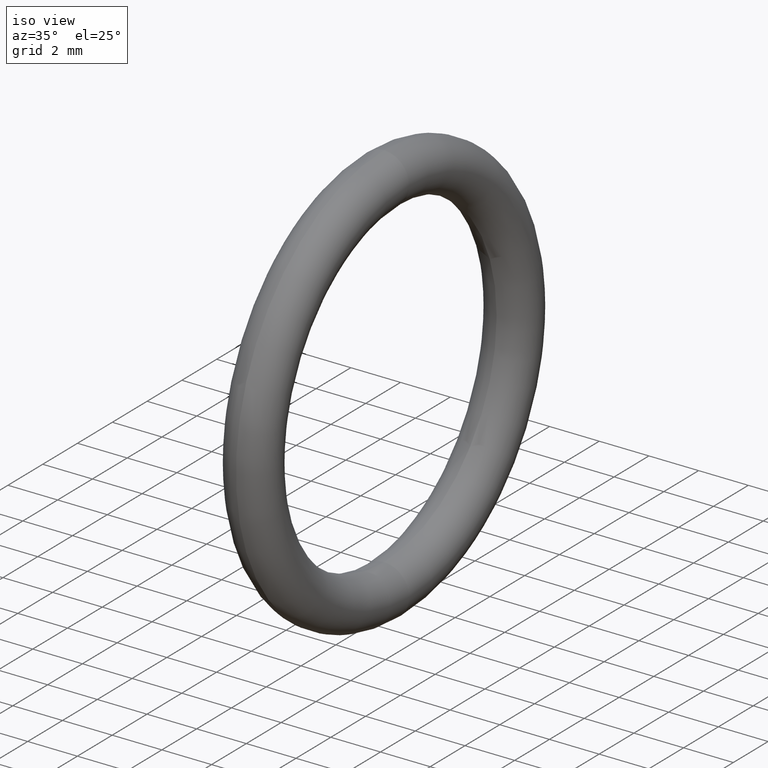
[diagram: clean part render]
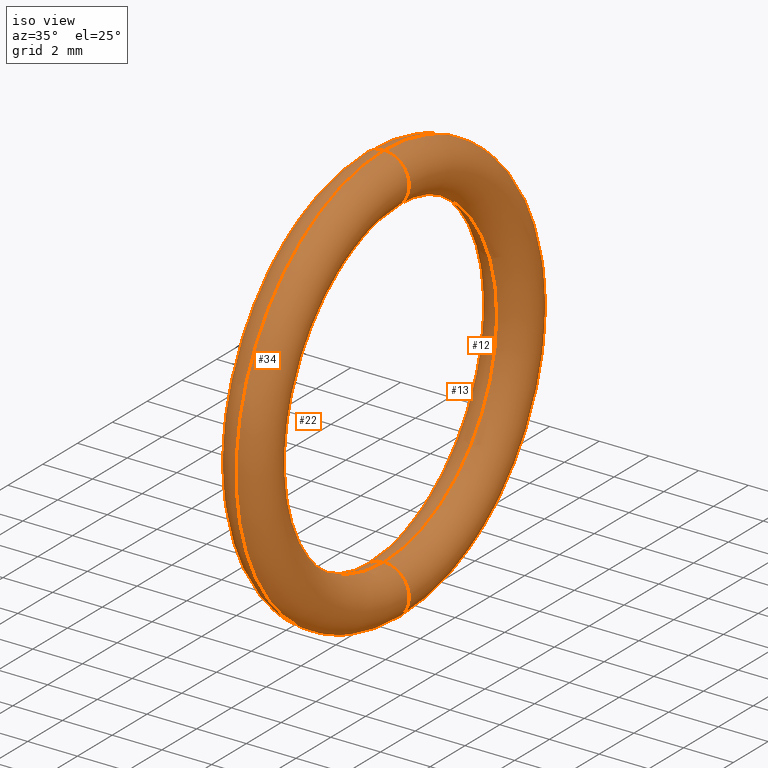
[diagram: same view with one multi-face feature highlighted, each face labeled with its STEP entity id]
A machine part, iso view. The highlighted faces form ONE feature: a constant-radius fillet chain: 4 tangent blend faces with common blend radius 1.016 mm. The faces share edges in the B-rep.
Their STEP definitions:
[1] entity #12 (Torus):
#8 = EDGE_CURVE ( 'NONE', #41, #43, #49, .T. ) ;
#11 = EDGE_CURVE ( 'NONE', #41, #30, #69, .T. ) ;
#12 = ADVANCED_FACE ( 'NONE', ( #70 ), #66, .T. ) ;
#19 = EDGE_CURVE ( 'NONE', #30, #33, #89, .T. ) ;
#24 = ORIENTED_EDGE ( 'NONE', *, *, #19, .T. ) ;
#25 = EDGE_LOOP ( 'NONE', ( #26, #27, #38, #24 ) ) ;
#26 = ORIENTED_EDGE ( 'NONE', *, *, #35, .F. ) ;
#27 = ORIENTED_EDGE ( 'NONE', *, *, #8, .F. ) ;
#30 = VERTEX_POINT ( 'NONE', #79 ) ;
#33 = VERTEX_POINT ( 'NONE', #61 ) ;
#35 = EDGE_CURVE ( 'NONE', #43, #33, #58, .T. ) ;
#38 = ORIENTED_EDGE ( 'NONE', *, *, #11, .T. ) ;
#41 = VERTEX_POINT ( 'NONE', #120 ) ;
#43 = VERTEX_POINT ( 'NONE', #130 ) ;
#45 = CARTESIAN_POINT ( 'NONE',  ( 0.1000000000000000500, 0.0000000000000000000, 0.2949999999999999800 ) ) ;
#46 = CARTESIAN_POINT ( 'NONE',  ( 0.1000000000000000500, 3.612708057484692000E-017, -0.2949999999999999800 ) ) ;
#49 = CIRCLE ( 'NONE', #91, 0.03999999999999998000 ) ;
#53 = DIRECTION ( 'NONE',  ( 0.0000000000000000000, 0.0000000000000000000, 1.000000000000000000 ) ) ;
#54 = DIRECTION ( 'NONE',  ( -1.000000000000000000, -0.0000000000000000000, -0.0000000000000000000 ) ) ;
#55 = CARTESIAN_POINT ( 'NONE',  ( 0.1000000000000000500, 0.0000000000000000000, 0.0000000000000000000 ) ) ;
#58 = CIRCLE ( 'NONE', #84, 0.3349999999999999600 ) ;
#61 = CARTESIAN_POINT ( 'NONE',  ( 0.1000000000000000500, 4.102566777143632800E-017, -0.3349999999999999600 ) ) ;
#63 = DIRECTION ( 'NONE',  ( 0.0000000000000000000, -1.224646799147353900E-016, 1.000000000000000000 ) ) ;
#64 = DIRECTION ( 'NONE',  ( -0.0000000000000000000, 1.000000000000000000, 1.224646799147353200E-016 ) ) ;
#65 = AXIS2_PLACEMENT_3D ( 'NONE', #46, #64, #63 ) ;
#66 = TOROIDAL_SURFACE ( 'NONE', #100, 0.2949999999999999800, 0.04000000000000000100 ) ;
#68 = AXIS2_PLACEMENT_3D ( 'NONE', #98, #97, #96 ) ;
#69 = CIRCLE ( 'NONE', #68, 0.2550000000000000000 ) ;
#70 = FACE_OUTER_BOUND ( 'NONE', #25, .T. ) ;
#79 = CARTESIAN_POINT ( 'NONE',  ( 0.1000000000000000500, 3.122849337825750500E-017, -0.2550000000000000000 ) ) ;
#81 = DIRECTION ( 'NONE',  ( 0.0000000000000000000, 0.0000000000000000000, 1.000000000000000000 ) ) ;
#82 = DIRECTION ( 'NONE',  ( -1.000000000000000000, -0.0000000000000000000, -0.0000000000000000000 ) ) ;
#83 = CARTESIAN_POINT ( 'NONE',  ( 0.1000000000000000500, 0.0000000000000000000, 0.0000000000000000000 ) ) ;
#84 = AXIS2_PLACEMENT_3D ( 'NONE', #83, #82, #81 ) ;
#88 = DIRECTION ( 'NONE',  ( 0.0000000000000000000, -1.000000000000000000, 0.0000000000000000000 ) ) ;
#89 = CIRCLE ( 'NONE', #65, 0.03999999999999998000 ) ;
#91 = AXIS2_PLACEMENT_3D ( 'NONE', #45, #88, #99 ) ;
#96 = DIRECTION ( 'NONE',  ( 0.0000000000000000000, 0.0000000000000000000, 1.000000000000000000 ) ) ;
#97 = DIRECTION ( 'NONE',  ( -1.000000000000000000, -0.0000000000000000000, -0.0000000000000000000 ) ) ;
#98 = CARTESIAN_POINT ( 'NONE',  ( 0.1000000000000000500, 0.0000000000000000000, 0.0000000000000000000 ) ) ;
#99 = DIRECTION ( 'NONE',  ( 0.0000000000000000000, 0.0000000000000000000, -1.000000000000000000 ) ) ;
#100 = AXIS2_PLACEMENT_3D ( 'NONE', #55, #54, #53 ) ;
#120 = CARTESIAN_POINT ( 'NONE',  ( 0.1000000000000000500, 0.0000000000000000000, 0.2550000000000000000 ) ) ;
#130 = CARTESIAN_POINT ( 'NONE',  ( 0.1000000000000000500, 0.0000000000000000000, 0.3349999999999999600 ) ) ;
[2] entity #22 (Torus):
#7 = EDGE_CURVE ( 'NONE', #33, #43, #51, .T. ) ;
#8 = EDGE_CURVE ( 'NONE', #41, #43, #49, .T. ) ;
#16 = ORIENTED_EDGE ( 'NONE', *, *, #37, .T. ) ;
#17 = ORIENTED_EDGE ( 'NONE', *, *, #8, .T. ) ;
#18 = EDGE_LOOP ( 'NONE', ( #20, #23, #16, #17 ) ) ;
#19 = EDGE_CURVE ( 'NONE', #30, #33, #89, .T. ) ;
#20 = ORIENTED_EDGE ( 'NONE', *, *, #7, .F. ) ;
#22 = ADVANCED_FACE ( 'NONE', ( #90 ), #67, .T. ) ;
#23 = ORIENTED_EDGE ( 'NONE', *, *, #19, .F. ) ;
#30 = VERTEX_POINT ( 'NONE', #79 ) ;
#33 = VERTEX_POINT ( 'NONE', #61 ) ;
#37 = EDGE_CURVE ( 'NONE', #30, #41, #114, .T. ) ;
#41 = VERTEX_POINT ( 'NONE', #120 ) ;
#43 = VERTEX_POINT ( 'NONE', #130 ) ;
#44 = AXIS2_PLACEMENT_3D ( 'NONE', #92, #101, #50 ) ;
#45 = CARTESIAN_POINT ( 'NONE',  ( 0.1000000000000000500, 0.0000000000000000000, 0.2949999999999999800 ) ) ;
#46 = CARTESIAN_POINT ( 'NONE',  ( 0.1000000000000000500, 3.612708057484692000E-017, -0.2949999999999999800 ) ) ;
#49 = CIRCLE ( 'NONE', #91, 0.03999999999999998000 ) ;
#50 = DIRECTION ( 'NONE',  ( 0.0000000000000000000, 0.0000000000000000000, 1.000000000000000000 ) ) ;
#51 = CIRCLE ( 'NONE', #44, 0.3349999999999999600 ) ;
#61 = CARTESIAN_POINT ( 'NONE',  ( 0.1000000000000000500, 4.102566777143632800E-017, -0.3349999999999999600 ) ) ;
#62 = CARTESIAN_POINT ( 'NONE',  ( 0.1000000000000000500, 0.0000000000000000000, 0.0000000000000000000 ) ) ;
#63 = DIRECTION ( 'NONE',  ( 0.0000000000000000000, -1.224646799147353900E-016, 1.000000000000000000 ) ) ;
#64 = DIRECTION ( 'NONE',  ( -0.0000000000000000000, 1.000000000000000000, 1.224646799147353200E-016 ) ) ;
#65 = AXIS2_PLACEMENT_3D ( 'NONE', #46, #64, #63 ) ;
#67 = TOROIDAL_SURFACE ( 'NONE', #78, 0.2949999999999999800, 0.04000000000000000100 ) ;
#76 = DIRECTION ( 'NONE',  ( 0.0000000000000000000, 0.0000000000000000000, 1.000000000000000000 ) ) ;
#77 = DIRECTION ( 'NONE',  ( -1.000000000000000000, -0.0000000000000000000, -0.0000000000000000000 ) ) ;
#78 = AXIS2_PLACEMENT_3D ( 'NONE', #62, #77, #76 ) ;
#79 = CARTESIAN_POINT ( 'NONE',  ( 0.1000000000000000500, 3.122849337825750500E-017, -0.2550000000000000000 ) ) ;
#88 = DIRECTION ( 'NONE',  ( 0.0000000000000000000, -1.000000000000000000, 0.0000000000000000000 ) ) ;
#89 = CIRCLE ( 'NONE', #65, 0.03999999999999998000 ) ;
#90 = FACE_OUTER_BOUND ( 'NONE', #18, .T. ) ;
#91 = AXIS2_PLACEMENT_3D ( 'NONE', #45, #88, #99 ) ;
#92 = CARTESIAN_POINT ( 'NONE',  ( 0.1000000000000000500, 0.0000000000000000000, 0.0000000000000000000 ) ) ;
#99 = DIRECTION ( 'NONE',  ( 0.0000000000000000000, 0.0000000000000000000, -1.000000000000000000 ) ) ;
#101 = DIRECTION ( 'NONE',  ( -1.000000000000000000, -0.0000000000000000000, -0.0000000000000000000 ) ) ;
#114 = CIRCLE ( 'NONE', #135, 0.2550000000000000000 ) ;
#118 = DIRECTION ( 'NONE',  ( -1.000000000000000000, -0.0000000000000000000, -0.0000000000000000000 ) ) ;
#120 = CARTESIAN_POINT ( 'NONE',  ( 0.1000000000000000500, 0.0000000000000000000, 0.2550000000000000000 ) ) ;
#124 = CARTESIAN_POINT ( 'NONE',  ( 0.1000000000000000500, 0.0000000000000000000, 0.0000000000000000000 ) ) ;
#130 = CARTESIAN_POINT ( 'NONE',  ( 0.1000000000000000500, 0.0000000000000000000, 0.3349999999999999600 ) ) ;
#133 = DIRECTION ( 'NONE',  ( 0.0000000000000000000, 0.0000000000000000000, 1.000000000000000000 ) ) ;
#135 = AXIS2_PLACEMENT_3D ( 'NONE', #124, #118, #133 ) ;
[3] entity #34 (Torus):
#6 = ORIENTED_EDGE ( 'NONE', *, *, #32, .F. ) ;
#7 = EDGE_CURVE ( 'NONE', #33, #43, #51, .T. ) ;
#28 = EDGE_LOOP ( 'NONE', ( #6, #31, #42, #39 ) ) ;
#30 = VERTEX_POINT ( 'NONE', #79 ) ;
#31 = ORIENTED_EDGE ( 'NONE', *, *, #7, .T. ) ;
#32 = EDGE_CURVE ( 'NONE', #33, #30, #75, .T. ) ;
#33 = VERTEX_POINT ( 'NONE', #61 ) ;
#34 = ADVANCED_FACE ( 'NONE', ( #60 ), #57, .T. ) ;
#37 = EDGE_CURVE ( 'NONE', #30, #41, #114, .T. ) ;
#39 = ORIENTED_EDGE ( 'NONE', *, *, #37, .F. ) ;
#40 = EDGE_CURVE ( 'NONE', #43, #41, #148, .T. ) ;
#41 = VERTEX_POINT ( 'NONE', #120 ) ;
#42 = ORIENTED_EDGE ( 'NONE', *, *, #40, .T. ) ;
#43 = VERTEX_POINT ( 'NONE', #130 ) ;
#44 = AXIS2_PLACEMENT_3D ( 'NONE', #92, #101, #50 ) ;
#50 = DIRECTION ( 'NONE',  ( 0.0000000000000000000, 0.0000000000000000000, 1.000000000000000000 ) ) ;
#51 = CIRCLE ( 'NONE', #44, 0.3349999999999999600 ) ;
#56 = AXIS2_PLACEMENT_3D ( 'NONE', #59, #87, #86 ) ;
#57 = TOROIDAL_SURFACE ( 'NONE', #56, 0.2949999999999999800, 0.04000000000000000100 ) ;
#59 = CARTESIAN_POINT ( 'NONE',  ( 0.1000000000000000500, 0.0000000000000000000, 0.0000000000000000000 ) ) ;
#60 = FACE_OUTER_BOUND ( 'NONE', #28, .T. ) ;
#61 = CARTESIAN_POINT ( 'NONE',  ( 0.1000000000000000500, 4.102566777143632800E-017, -0.3349999999999999600 ) ) ;
#71 = DIRECTION ( 'NONE',  ( 0.0000000000000000000, -1.224646799147353900E-016, 1.000000000000000000 ) ) ;
#72 = DIRECTION ( 'NONE',  ( -0.0000000000000000000, 1.000000000000000000, 1.224646799147353200E-016 ) ) ;
#73 = CARTESIAN_POINT ( 'NONE',  ( 0.1000000000000000500, 3.612708057484692000E-017, -0.2949999999999999800 ) ) ;
#74 = AXIS2_PLACEMENT_3D ( 'NONE', #73, #72, #71 ) ;
#75 = CIRCLE ( 'NONE', #74, 0.03999999999999998000 ) ;
#79 = CARTESIAN_POINT ( 'NONE',  ( 0.1000000000000000500, 3.122849337825750500E-017, -0.2550000000000000000 ) ) ;
#86 = DIRECTION ( 'NONE',  ( 0.0000000000000000000, 0.0000000000000000000, 1.000000000000000000 ) ) ;
#87 = DIRECTION ( 'NONE',  ( -1.000000000000000000, -0.0000000000000000000, -0.0000000000000000000 ) ) ;
#92 = CARTESIAN_POINT ( 'NONE',  ( 0.1000000000000000500, 0.0000000000000000000, 0.0000000000000000000 ) ) ;
#101 = DIRECTION ( 'NONE',  ( -1.000000000000000000, -0.0000000000000000000, -0.0000000000000000000 ) ) ;
#114 = CIRCLE ( 'NONE', #135, 0.2550000000000000000 ) ;
#118 = DIRECTION ( 'NONE',  ( -1.000000000000000000, -0.0000000000000000000, -0.0000000000000000000 ) ) ;
#119 = AXIS2_PLACEMENT_3D ( 'NONE', #134, #132, #131 ) ;
#120 = CARTESIAN_POINT ( 'NONE',  ( 0.1000000000000000500, 0.0000000000000000000, 0.2550000000000000000 ) ) ;
#124 = CARTESIAN_POINT ( 'NONE',  ( 0.1000000000000000500, 0.0000000000000000000, 0.0000000000000000000 ) ) ;
#130 = CARTESIAN_POINT ( 'NONE',  ( 0.1000000000000000500, 0.0000000000000000000, 0.3349999999999999600 ) ) ;
#131 = DIRECTION ( 'NONE',  ( 0.0000000000000000000, 0.0000000000000000000, -1.000000000000000000 ) ) ;
#132 = DIRECTION ( 'NONE',  ( 0.0000000000000000000, -1.000000000000000000, 0.0000000000000000000 ) ) ;
#133 = DIRECTION ( 'NONE',  ( 0.0000000000000000000, 0.0000000000000000000, 1.000000000000000000 ) ) ;
#134 = CARTESIAN_POINT ( 'NONE',  ( 0.1000000000000000500, 0.0000000000000000000, 0.2949999999999999800 ) ) ;
#135 = AXIS2_PLACEMENT_3D ( 'NONE', #124, #118, #133 ) ;
#148 = CIRCLE ( 'NONE', #119, 0.03999999999999998000 ) ;
[4] entity #13 (Torus):
#9 = ORIENTED_EDGE ( 'NONE', *, *, #40, .F. ) ;
#10 = ORIENTED_EDGE ( 'NONE', *, *, #11, .F. ) ;
#11 = EDGE_CURVE ( 'NONE', #41, #30, #69, .T. ) ;
#13 = ADVANCED_FACE ( 'NONE', ( #52 ), #93, .T. ) ;
#14 = EDGE_LOOP ( 'NONE', ( #9, #15, #36, #10 ) ) ;
#15 = ORIENTED_EDGE ( 'NONE', *, *, #35, .T. ) ;
#30 = VERTEX_POINT ( 'NONE', #79 ) ;
#32 = EDGE_CURVE ( 'NONE', #33, #30, #75, .T. ) ;
#33 = VERTEX_POINT ( 'NONE', #61 ) ;
#35 = EDGE_CURVE ( 'NONE', #43, #33, #58, .T. ) ;
#36 = ORIENTED_EDGE ( 'NONE', *, *, #32, .T. ) ;
#40 = EDGE_CURVE ( 'NONE', #43, #41, #148, .T. ) ;
#41 = VERTEX_POINT ( 'NONE', #120 ) ;
#43 = VERTEX_POINT ( 'NONE', #130 ) ;
#47 = DIRECTION ( 'NONE',  ( 0.0000000000000000000, 0.0000000000000000000, 1.000000000000000000 ) ) ;
#48 = DIRECTION ( 'NONE',  ( -1.000000000000000000, -0.0000000000000000000, -0.0000000000000000000 ) ) ;
#52 = FACE_OUTER_BOUND ( 'NONE', #14, .T. ) ;
#58 = CIRCLE ( 'NONE', #84, 0.3349999999999999600 ) ;
#61 = CARTESIAN_POINT ( 'NONE',  ( 0.1000000000000000500, 4.102566777143632800E-017, -0.3349999999999999600 ) ) ;
#68 = AXIS2_PLACEMENT_3D ( 'NONE', #98, #97, #96 ) ;
#69 = CIRCLE ( 'NONE', #68, 0.2550000000000000000 ) ;
#71 = DIRECTION ( 'NONE',  ( 0.0000000000000000000, -1.224646799147353900E-016, 1.000000000000000000 ) ) ;
#72 = DIRECTION ( 'NONE',  ( -0.0000000000000000000, 1.000000000000000000, 1.224646799147353200E-016 ) ) ;
#73 = CARTESIAN_POINT ( 'NONE',  ( 0.1000000000000000500, 3.612708057484692000E-017, -0.2949999999999999800 ) ) ;
#74 = AXIS2_PLACEMENT_3D ( 'NONE', #73, #72, #71 ) ;
#75 = CIRCLE ( 'NONE', #74, 0.03999999999999998000 ) ;
#79 = CARTESIAN_POINT ( 'NONE',  ( 0.1000000000000000500, 3.122849337825750500E-017, -0.2550000000000000000 ) ) ;
#81 = DIRECTION ( 'NONE',  ( 0.0000000000000000000, 0.0000000000000000000, 1.000000000000000000 ) ) ;
#82 = DIRECTION ( 'NONE',  ( -1.000000000000000000, -0.0000000000000000000, -0.0000000000000000000 ) ) ;
#83 = CARTESIAN_POINT ( 'NONE',  ( 0.1000000000000000500, 0.0000000000000000000, 0.0000000000000000000 ) ) ;
#84 = AXIS2_PLACEMENT_3D ( 'NONE', #83, #82, #81 ) ;
#93 = TOROIDAL_SURFACE ( 'NONE', #95, 0.2949999999999999800, 0.04000000000000000100 ) ;
#94 = CARTESIAN_POINT ( 'NONE',  ( 0.1000000000000000500, 0.0000000000000000000, 0.0000000000000000000 ) ) ;
#95 = AXIS2_PLACEMENT_3D ( 'NONE', #94, #48, #47 ) ;
#96 = DIRECTION ( 'NONE',  ( 0.0000000000000000000, 0.0000000000000000000, 1.000000000000000000 ) ) ;
#97 = DIRECTION ( 'NONE',  ( -1.000000000000000000, -0.0000000000000000000, -0.0000000000000000000 ) ) ;
#98 = CARTESIAN_POINT ( 'NONE',  ( 0.1000000000000000500, 0.0000000000000000000, 0.0000000000000000000 ) ) ;
#119 = AXIS2_PLACEMENT_3D ( 'NONE', #134, #132, #131 ) ;
#120 = CARTESIAN_POINT ( 'NONE',  ( 0.1000000000000000500, 0.0000000000000000000, 0.2550000000000000000 ) ) ;
#130 = CARTESIAN_POINT ( 'NONE',  ( 0.1000000000000000500, 0.0000000000000000000, 0.3349999999999999600 ) ) ;
#131 = DIRECTION ( 'NONE',  ( 0.0000000000000000000, 0.0000000000000000000, -1.000000000000000000 ) ) ;
#132 = DIRECTION ( 'NONE',  ( 0.0000000000000000000, -1.000000000000000000, 0.0000000000000000000 ) ) ;
#134 = CARTESIAN_POINT ( 'NONE',  ( 0.1000000000000000500, 0.0000000000000000000, 0.2949999999999999800 ) ) ;
#148 = CIRCLE ( 'NONE', #119, 0.03999999999999998000 ) ;